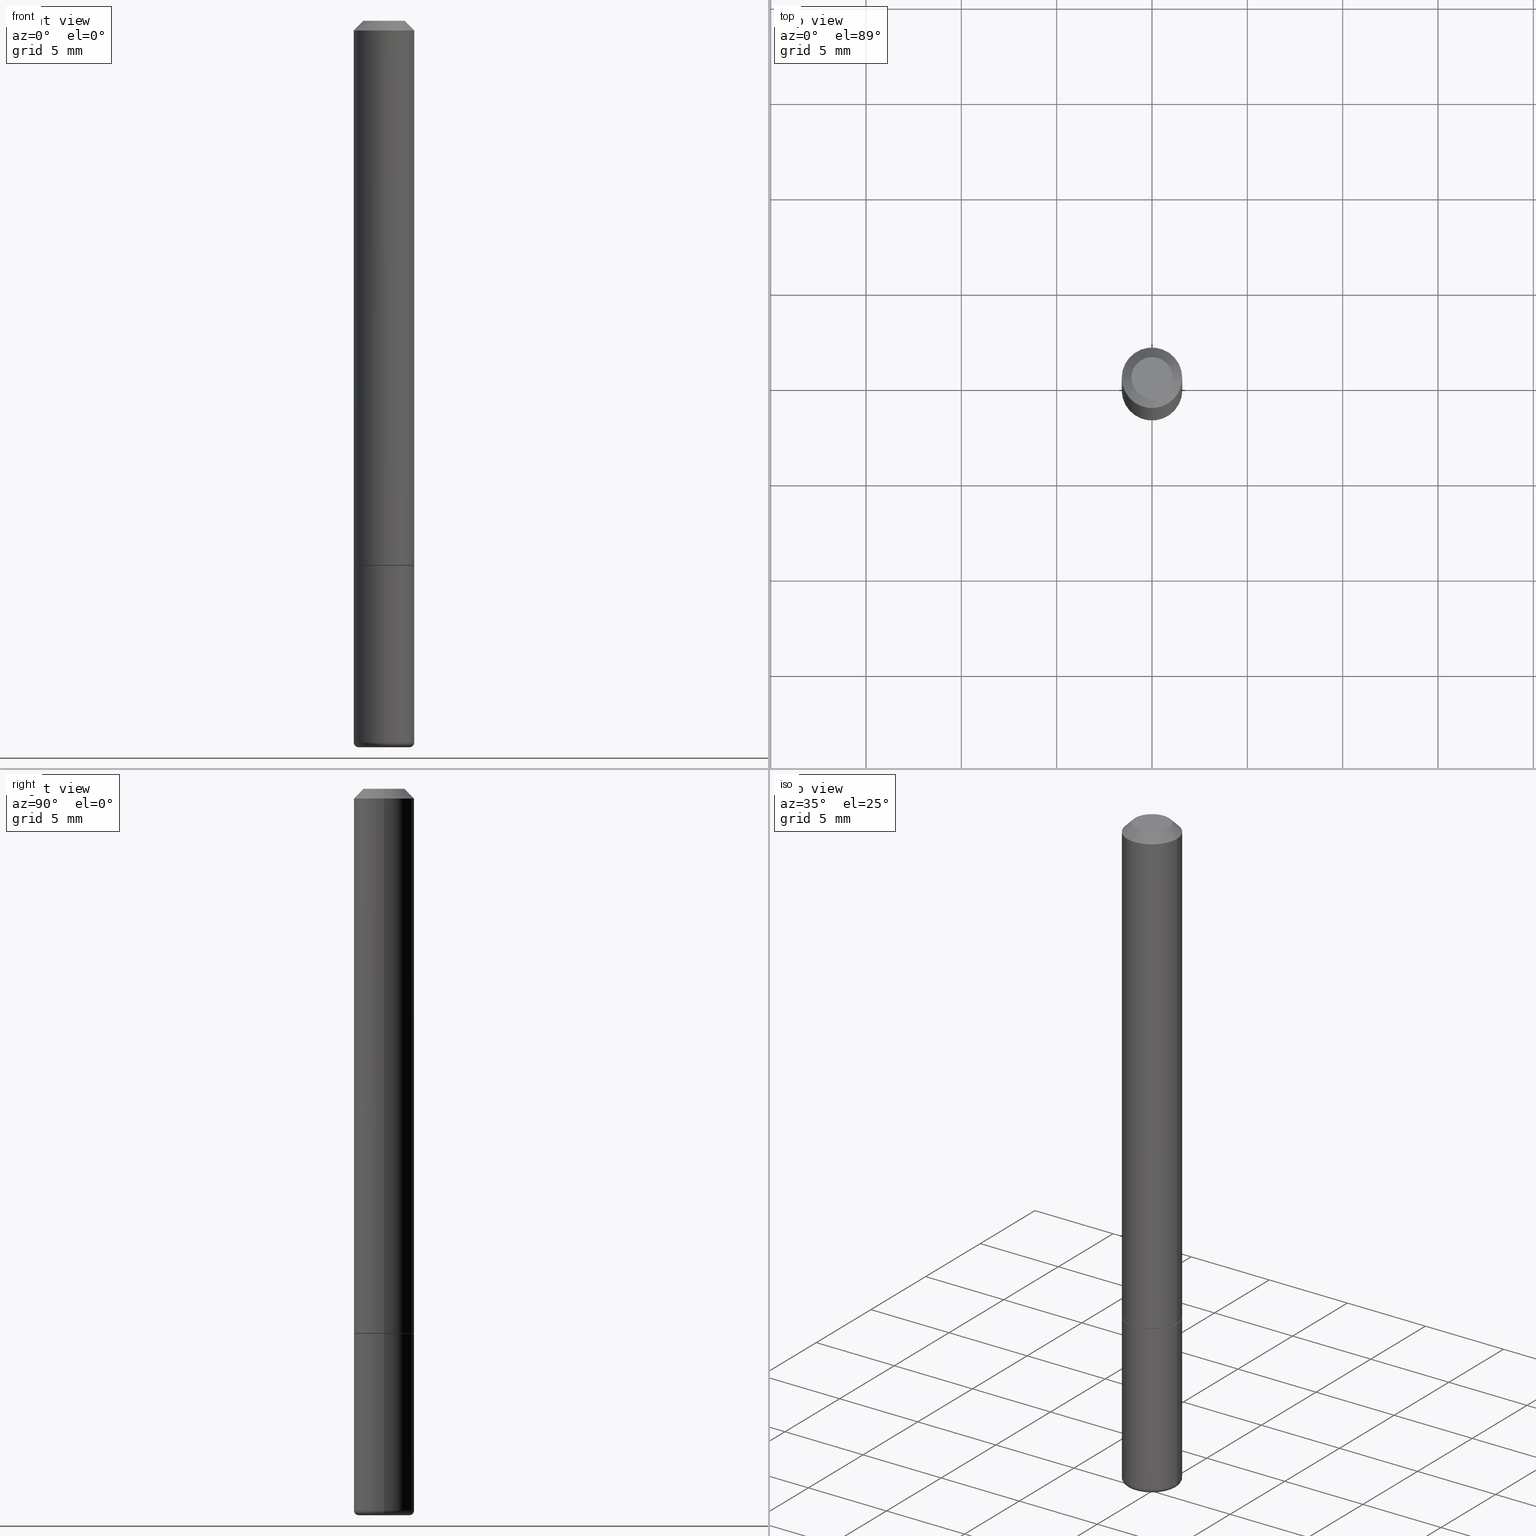
[diagram: canonical four-view strip — front | top / right | iso, engineering-drawing reading convention]
A machine part, canonical four-view strip (front | top / right | iso — engineering-drawing reading convention). The complete STEP part file that produces these views, byte-faithful:
ISO-10303-21;
HEADER;
FILE_DESCRIPTION (( 'STEP AP203' ),
    '1' );
FILE_NAME ('34771.STEP',
    '2022-11-02T20:15:37',
    ( '' ),
    ( '' ),
    'SwSTEP 2.0',
    'SolidWorks 2022',
    '' );
FILE_SCHEMA (( 'CONFIG_CONTROL_DESIGN' ));
ENDSEC;

DATA;
#1 = CIRCLE ( 'NONE', #11, 0.06249999999999988204 ) ;
#2 = VERTEX_POINT ( 'NONE', #258 ) ;
#3 = DIRECTION ( 'NONE',  ( -2.445468806185136597E-29, 3.491481338843145583E-15, 1.000000000000000000 ) ) ;
#4 = DIRECTION ( 'NONE',  ( -0.7071067811865471286, 2.468850131082252722E-15, -0.7071067811865479058 ) ) ;
#5 = CARTESIAN_POINT ( 'NONE',  ( -0.06149999999999987421, -3.490932723706079588E-15, -1.125000000000000444 ) ) ;
#6 = VECTOR ( 'NONE', #237, 39.37007874015748143 ) ;
#7 = CARTESIAN_POINT ( 'NONE',  ( -0.06249999999999981265, 4.440892098500612850E-16, -3.074334431409306655E-30 ) ) ;
#8 = PERSON_AND_ORGANIZATION_ROLE ( 'design_supplier' ) ;
#9 = CARTESIAN_POINT ( 'NONE',  ( 0.04574648464501647471, -5.550862555965727434E-15, -1.499941824517589950 ) ) ;
#10 = FACE_OUTER_BOUND ( 'NONE', #308, .T. ) ;
#11 = AXIS2_PLACEMENT_3D ( 'NONE', #27, #162, #319 ) ;
#12 = APPROVAL_PERSON_ORGANIZATION ( #138, #253, #67 ) ;
#13 = FACE_OUTER_BOUND ( 'NONE', #349, .T. ) ;
#14 = CARTESIAN_POINT ( 'NONE',  ( 3.668203209277704895E-29, -5.237222008264718177E-15, -1.500000000000000222 ) ) ;
#15 = ORIENTED_EDGE ( 'NONE', *, *, #278, .F. ) ;
#16 = DIRECTION ( 'NONE',  ( -2.445468806185136597E-29, 3.491481338843145583E-15, 1.000000000000000000 ) ) ;
#17 = CARTESIAN_POINT ( 'NONE',  ( -0.06249999999999988204, -1.553038115968216353E-15, -1.124000000000000332 ) ) ;
#18 = DIRECTION ( 'NONE',  ( 1.000000000000000000, -6.982962677686261977E-15, 0.000000000000000000 ) ) ;
#19 = AXIS2_PLACEMENT_3D ( 'NONE', #462, #243, #389 ) ;
#20 = DIRECTION ( 'NONE',  ( 1.000000000000000000, -6.982962677686268288E-15, 0.000000000000000000 ) ) ;
#21 = LOCAL_TIME ( 16, 15, 37.00000000000000000, #222 ) ;
#22 = ADVANCED_FACE ( 'NONE', ( #415 ), #227, .T. ) ;
#23 = DIRECTION ( 'NONE',  ( -0.9993908270190955401, 6.856857904024546215E-15, -0.03489949670250396679 ) ) ;
#24 = DIRECTION ( 'NONE',  ( 2.445468806185136597E-29, -3.491481338843145583E-15, -1.000000000000000000 ) ) ;
#25 = CARTESIAN_POINT ( 'NONE',  ( 3.668060942950186206E-29, -5.237018889653505716E-15, -1.499941824517589950 ) ) ;
#26 = CARTESIAN_POINT ( 'NONE',  ( 0.000000000000000000, 0.000000000000000000, 0.000000000000000000 ) ) ;
#27 = CARTESIAN_POINT ( 'NONE',  ( 2.751152406958279792E-29, -3.927916506198540013E-15, -1.125000000000000444 ) ) ;
#28 = ORIENTED_EDGE ( 'NONE', *, *, #149, .T. ) ;
#29 = ADVANCED_FACE ( 'NONE', ( #33 ), #366, .T. ) ;
#30 = LINE ( 'NONE', #446, #57 ) ;
#31 = TOROIDAL_SURFACE ( 'NONE', #311, 0.05250000000000019235, 0.009999999999999778164 ) ;
#32 = AXIS2_PLACEMENT_3D ( 'NONE', #250, #477, #361 ) ;
#33 = FACE_OUTER_BOUND ( 'NONE', #371, .T. ) ;
#34 = ORIENTED_EDGE ( 'NONE', *, *, #478, .T. ) ;
#35 =( NAMED_UNIT ( * ) PLANE_ANGLE_UNIT ( ) SI_UNIT ( $, .RADIAN. ) );
#36 = ORIENTED_EDGE ( 'NONE', *, *, #264, .F. ) ;
#37 = APPROVAL_ROLE ( '' ) ;
#38 = CARTESIAN_POINT ( 'NONE',  ( 2.751152406958279792E-29, -3.927916506198540013E-15, -1.125000000000000444 ) ) ;
#39 = VECTOR ( 'NONE', #206, 39.37007874015748854 ) ;
#40 = VERTEX_POINT ( 'NONE', #17 ) ;
#41 = CONICAL_SURFACE ( 'NONE', #338, 0.06149999999999987421, 0.7853981633974141952 ) ;
#42 = PLANE ( 'NONE',  #77 ) ;
#43 = DIRECTION ( 'NONE',  ( 2.438088387897960049E-29, -3.491481338843145188E-15, -1.000000000000000000 ) ) ;
#44 = EDGE_CURVE ( 'NONE', #268, #382, #322, .T. ) ;
#45 = DIRECTION ( 'NONE',  ( -1.000000000000000000, 6.982962677686265922E-15, 0.000000000000000000 ) ) ;
#46 = CARTESIAN_POINT ( 'NONE',  ( 4.890937612370289799E-31, -6.982962677686315028E-17, -0.02000000000000006981 ) ) ;
#47 = EDGE_LOOP ( 'NONE', ( #329, #401, #78, #489 ) ) ;
#48 = AXIS2_PLACEMENT_3D ( 'NONE', #88, #241, #386 ) ;
#49 = AXIS2_PLACEMENT_3D ( 'NONE', #140, #484, #280 ) ;
#50 = DIRECTION ( 'NONE',  ( -2.445468806185136597E-29, 3.491481338843145583E-15, 1.000000000000000000 ) ) ;
#51 = ADVANCED_BREP_SHAPE_REPRESENTATION ( '34771', ( #178, #168, #388 ), #103 ) ;
#52 = DIRECTION ( 'NONE',  ( 0.7071067811865471286, -7.319954787623254468E-15, -0.7071067811865479058 ) ) ;
#53 = DIRECTION ( 'NONE',  ( -2.445468806185136877E-29, 3.491481338843145188E-15, 1.000000000000000000 ) ) ;
#54 = ADVANCED_FACE ( 'NONE', ( #480 ), #152, .F. ) ;
#55 = ORIENTED_EDGE ( 'NONE', *, *, #220, .T. ) ;
#56 = EDGE_CURVE ( 'NONE', #425, #382, #30, .T. ) ;
#57 = VECTOR ( 'NONE', #23, 39.37007874015748143 ) ;
#58 = CARTESIAN_POINT ( 'NONE',  ( 0.06249999999999974326, -4.986107516375821473E-16, -0.02000000000000006981 ) ) ;
#59 = LINE ( 'NONE', #325, #364 ) ;
#60 = DIRECTION ( 'NONE',  ( -2.445468806185136597E-29, 3.491481338843145583E-15, 1.000000000000000000 ) ) ;
#61 = PRODUCT ( '34771', '34771', '', ( #145 ) ) ;
#62 = CARTESIAN_POINT ( 'NONE',  ( 3.668060942950186206E-29, -5.237018889653505716E-15, -1.499941824517589950 ) ) ;
#63 = EDGE_CURVE ( 'NONE', #382, #268, #124, .T. ) ;
#64 = CARTESIAN_POINT ( 'NONE',  ( -0.05241273464501648022, -4.871225838403094703E-15, -1.500000000000000222 ) ) ;
#65 = VECTOR ( 'NONE', #158, 39.37007874015748143 ) ;
#66 = APPROVAL_PERSON_ORGANIZATION ( #219, #86, #37 ) ;
#67 = APPROVAL_ROLE ( '' ) ;
#68 = CARTESIAN_POINT ( 'NONE',  ( 0.06149999999999987421, -4.357368710876244879E-15, -1.125000000000000444 ) ) ;
#69 =( LENGTH_UNIT ( ) NAMED_UNIT ( * ) SI_UNIT ( $, .METRE. ) );
#70 = ORIENTED_EDGE ( 'NONE', *, *, #210, .F. ) ;
#71 = DIRECTION ( 'NONE',  ( 0.000000000000000000, 0.000000000000000000, 1.000000000000000000 ) ) ;
#72 = AXIS2_PLACEMENT_3D ( 'NONE', #287, #174, #481 ) ;
#73 = APPLICATION_PROTOCOL_DEFINITION ( 'international standard', 'config_control_design', 1994, #391 ) ;
#74 = ORIENTED_EDGE ( 'NONE', *, *, #212, .T. ) ;
#75 = ADVANCED_FACE ( 'NONE', ( #175 ), #330, .T. ) ;
#76 = LINE ( 'NONE', #122, #353 ) ;
#77 = AXIS2_PLACEMENT_3D ( 'NONE', #160, #43, #318 ) ;
#78 = ORIENTED_EDGE ( 'NONE', *, *, #188, .T. ) ;
#79 = CC_DESIGN_APPROVAL ( #390, ( #260 ) ) ;
#80 = EDGE_LOOP ( 'NONE', ( #197, #55, #342, #115 ) ) ;
#81 = COORDINATED_UNIVERSAL_TIME_OFFSET ( 5, 0, .BEHIND. ) ;
#82 = FACE_OUTER_BOUND ( 'NONE', #105, .T. ) ;
#83 = EDGE_CURVE ( 'NONE', #492, #375, #468, .T. ) ;
#84 = DIMENSIONAL_EXPONENTS ( 1.000000000000000000, 0.000000000000000000, 0.000000000000000000, 0.000000000000000000, 0.000000000000000000, 0.000000000000000000, 0.000000000000000000 ) ;
#85 = PERSON_AND_ORGANIZATION ( #146, #404 ) ;
#86 = APPROVAL ( #452, 'UNSPECIFIED' ) ;
#87 = DIRECTION ( 'NONE',  ( -2.445468806185136597E-29, 3.491481338843145583E-15, 1.000000000000000000 ) ) ;
#88 = CARTESIAN_POINT ( 'NONE',  ( 0.000000000000000000, 0.000000000000000000, 0.000000000000000000 ) ) ;
#89 = FACE_OUTER_BOUND ( 'NONE', #114, .T. ) ;
#90 = AXIS2_PLACEMENT_3D ( 'NONE', #394, #94, #362 ) ;
#91 = CC_DESIGN_SECURITY_CLASSIFICATION ( #260, ( #236 ) ) ;
#92 = CARTESIAN_POINT ( 'NONE',  ( 3.668060942950186206E-29, -5.237018889653505716E-15, -1.499941824517589950 ) ) ;
#93 = DIRECTION ( 'NONE',  ( 1.000000000000000000, -6.982962677686258033E-15, 0.000000000000000000 ) ) ;
#94 = DIRECTION ( 'NONE',  ( -2.445468806185136597E-29, 3.491481338843145583E-15, 1.000000000000000000 ) ) ;
#95 = APPLICATION_CONTEXT ( 'configuration controlled 3d designs of mechanical parts and assemblies' ) ;
#96 = CIRCLE ( 'NONE', #439, 0.05241273464501648022 ) ;
#97 = CONICAL_SURFACE ( 'NONE', #283, 0.06249999999999974326, 0.7853981633974477239 ) ;
#98 = CARTESIAN_POINT ( 'NONE',  ( 3.643749452375443092E-29, -5.202308524325397108E-15, -1.490000380769358701 ) ) ;
#99 = DIRECTION ( 'NONE',  ( -2.445468806185136597E-29, 3.491481338843145583E-15, 1.000000000000000000 ) ) ;
#100 = EDGE_CURVE ( 'NONE', #268, #286, #249, .T. ) ;
#101 = DIRECTION ( 'NONE',  ( -2.445468806185136597E-29, 3.491481338843145583E-15, 1.000000000000000000 ) ) ;
#102 = DIRECTION ( 'NONE',  ( 1.000000000000000000, -6.982962677686265922E-15, 4.870577812114112753E-29 ) ) ;
#103 =( GEOMETRIC_REPRESENTATION_CONTEXT ( 3 ) GLOBAL_UNCERTAINTY_ASSIGNED_CONTEXT ( ( #218 ) ) GLOBAL_UNIT_ASSIGNED_CONTEXT ( ( #180, #35, #106 ) ) REPRESENTATION_CONTEXT ( 'NONE', 'WORKASPACE' ) );
#104 = ORIENTED_EDGE ( 'NONE', *, *, #205, .T. ) ;
#105 = EDGE_LOOP ( 'NONE', ( #144, #150, #104, #299 ) ) ;
#106 =( NAMED_UNIT ( * ) SI_UNIT ( $, .STERADIAN. ) SOLID_ANGLE_UNIT ( ) );
#107 = ORIENTED_EDGE ( 'NONE', *, *, #220, .F. ) ;
#108 = COORDINATED_UNIVERSAL_TIME_OFFSET ( 5, 0, .BEHIND. ) ;
#109 = DIRECTION ( 'NONE',  ( 2.445468806185136597E-29, -3.491481338843145583E-15, -1.000000000000000000 ) ) ;
#110 = ORIENTED_EDGE ( 'NONE', *, *, #83, .T. ) ;
#111 = AXIS2_PLACEMENT_3D ( 'NONE', #352, #198, #424 ) ;
#112 = CIRCLE ( 'NONE', #313, 0.06249999999999988204 ) ;
#113 = ORIENTED_EDGE ( 'NONE', *, *, #44, .F. ) ;
#114 = EDGE_LOOP ( 'NONE', ( #151, #226, #416 ) ) ;
#115 = ORIENTED_EDGE ( 'NONE', *, *, #478, .F. ) ;
#116 = DIRECTION ( 'NONE',  ( -1.000000000000000000, 6.982962677686265922E-15, -4.876176775795935793E-29 ) ) ;
#117 = ORIENTED_EDGE ( 'NONE', *, *, #368, .T. ) ;
#118 = CARTESIAN_POINT ( 'NONE',  ( 0.06249999999999988204, -4.364351673553931682E-15, -1.125000000000000444 ) ) ;
#119 = AXIS2_PLACEMENT_3D ( 'NONE', #465, #50, #271 ) ;
#120 = AXIS2_PLACEMENT_3D ( 'NONE', #186, #339, #142 ) ;
#121 = CARTESIAN_POINT ( 'NONE',  ( 4.890937612370289799E-31, -6.982962677686315028E-17, -0.02000000000000006981 ) ) ;
#122 = CARTESIAN_POINT ( 'NONE',  ( 0.06249999999999981265, -4.364351673553903382E-16, 3.047610484872450762E-30 ) ) ;
#123 = DIRECTION ( 'NONE',  ( 2.445468806185136597E-29, -3.491481338843145583E-15, -1.000000000000000000 ) ) ;
#124 = CIRCLE ( 'NONE', #141, 0.04574648464501647471 ) ;
#125 = EDGE_CURVE ( 'NONE', #491, #369, #320, .T. ) ;
#126 = DIRECTION ( 'NONE',  ( 2.445468806185136597E-29, -3.491481338843145583E-15, -1.000000000000000000 ) ) ;
#127 = CARTESIAN_POINT ( 'NONE',  ( 3.664154300552287084E-29, -5.231441239676822065E-15, -1.498344322072243440 ) ) ;
#128 = CARTESIAN_POINT ( 'NONE',  ( 3.668203209277704895E-29, -5.237222008264718177E-15, -1.500000000000000222 ) ) ;
#129 = CARTESIAN_POINT ( 'NONE',  ( 1.252621697202263706E-45, -1.788411804456536750E-31, -5.122214988120493535E-17 ) ) ;
#130 = EDGE_CURVE ( 'NONE', #184, #296, #1, .T. ) ;
#131 = EDGE_LOOP ( 'NONE', ( #215, #315, #70, #147 ) ) ;
#132 = AXIS2_PLACEMENT_3D ( 'NONE', #46, #475, #428 ) ;
#133 = CC_DESIGN_PERSON_AND_ORGANIZATION_ASSIGNMENT ( #183, #148, ( #331 ) ) ;
#134 = CARTESIAN_POINT ( 'NONE',  ( 0.000000000000000000, 0.000000000000000000, 0.000000000000000000 ) ) ;
#135 = ORIENTED_EDGE ( 'NONE', *, *, #83, .F. ) ;
#136 = DIRECTION ( 'NONE',  ( -0.9999619230641714207, 6.952228252019186602E-15, -0.008726535498369011531 ) ) ;
#137 = CARTESIAN_POINT ( 'NONE',  ( -0.06249999999999981265, -4.121023305411907128E-15, -1.490000380769358701 ) ) ;
#138 = PERSON_AND_ORGANIZATION ( #146, #404 ) ;
#139 = VERTEX_POINT ( 'NONE', #137 ) ;
#140 = CARTESIAN_POINT ( 'NONE',  ( 3.643749452375443092E-29, -5.202308524325397108E-15, -1.490000380769358701 ) ) ;
#141 = AXIS2_PLACEMENT_3D ( 'NONE', #62, #99, #18 ) ;
#142 = DIRECTION ( 'NONE',  ( 1.000000000000000000, -6.982962677686268288E-15, 0.000000000000000000 ) ) ;
#143 = ORIENTED_EDGE ( 'NONE', *, *, #149, .F. ) ;
#144 = ORIENTED_EDGE ( 'NONE', *, *, #368, .F. ) ;
#145 = MECHANICAL_CONTEXT ( 'NONE', #95, 'mechanical' ) ;
#146 = PERSON ( 'UNSPECIFIED', 'UNSPECIFIED', 'UNSPECIFIED', ('UNSPECIFIED'), ('UNSPECIFIED'), ('UNSPECIFIED') ) ;
#147 = ORIENTED_EDGE ( 'NONE', *, *, #348, .F. ) ;
#148 = PERSON_AND_ORGANIZATION_ROLE ( 'creator' ) ;
#149 = EDGE_CURVE ( 'NONE', #369, #375, #76, .T. ) ;
#150 = ORIENTED_EDGE ( 'NONE', *, *, #360, .T. ) ;
#151 = ORIENTED_EDGE ( 'NONE', *, *, #56, .F. ) ;
#152 = CONICAL_SURFACE ( 'NONE', #337, 0.05241273464501648022, 1.562069680534929894 ) ;
#153 = CONICAL_SURFACE ( 'NONE', #32, 0.06149999999999987421, 0.7853981633974141952 ) ;
#154 = ORIENTED_EDGE ( 'NONE', *, *, #278, .T. ) ;
#155 = DATE_AND_TIME ( #239, #293 ) ;
#156 = DIRECTION ( 'NONE',  ( 1.000000000000000000, -6.982962677686268288E-15, 0.000000000000000000 ) ) ;
#157 = EDGE_CURVE ( 'NONE', #425, #268, #203, .T. ) ;
#158 = DIRECTION ( 'NONE',  ( -2.445468806185136877E-29, 3.491481338843145188E-15, 1.000000000000000000 ) ) ;
#159 = ORIENTED_EDGE ( 'NONE', *, *, #327, .F. ) ;
#160 = CARTESIAN_POINT ( 'NONE',  ( 2.967759138016645800E-16, 0.04249999999999975325, -1.739990318414352692E-16 ) ) ;
#161 = ADVANCED_FACE ( 'NONE', ( #355 ), #42, .F. ) ;
#162 = DIRECTION ( 'NONE',  ( -2.445468806185136597E-29, 3.491481338843145583E-15, 1.000000000000000000 ) ) ;
#163 = AXIS2_PLACEMENT_3D ( 'NONE', #274, #123, #45 ) ;
#164 = SECURITY_CLASSIFICATION_LEVEL ( 'unclassified' ) ;
#165 = CARTESIAN_POINT ( 'NONE',  ( -0.06249999999999984734, 4.440892098500615315E-16, -3.074334431409308406E-30 ) ) ;
#166 = PERSON_AND_ORGANIZATION ( #146, #404 ) ;
#167 = CARTESIAN_POINT ( 'NONE',  ( 0.05241273464501648022, -5.603218178126342439E-15, -1.500000000000000222 ) ) ;
#168 = MANIFOLD_SOLID_BREP ( 'Body-Move/Copy2[2]', #437 ) ;
#169 = CARTESIAN_POINT ( 'NONE',  ( 0.06249999999999988204, -4.360860192215087886E-15, -1.124000000000000332 ) ) ;
#170 = AXIS2_PLACEMENT_3D ( 'NONE', #427, #196, #116 ) ;
#171 = DIRECTION ( 'NONE',  ( -2.445468806185136597E-29, 3.491481338843145583E-15, 1.000000000000000000 ) ) ;
#172 = ADVANCED_FACE ( 'NONE', ( #316 ), #281, .F. ) ;
#173 = CARTESIAN_POINT ( 'NONE',  ( 2.751152406958279792E-29, -3.927916506198540013E-15, -1.125000000000000444 ) ) ;
#174 = DIRECTION ( 'NONE',  ( -2.445468806185136597E-29, 3.491481338843145583E-15, 1.000000000000000000 ) ) ;
#175 = FACE_OUTER_BOUND ( 'NONE', #190, .T. ) ;
#176 = AXIS2_PLACEMENT_3D ( 'NONE', #129, #359, #102 ) ;
#177 = CC_DESIGN_APPROVAL ( #86, ( #331 ) ) ;
#178 = MANIFOLD_SOLID_BREP ( 'Body-Move/Copy2[1]', #445 ) ;
#179 = FACE_OUTER_BOUND ( 'NONE', #453, .T. ) ;
#180 =( CONVERSION_BASED_UNIT ( 'INCH', #376 ) LENGTH_UNIT ( ) NAMED_UNIT ( #84 ) );
#181 = PRODUCT_DEFINITION_SHAPE ( 'NONE', 'NONE',  #331 ) ;
#182 = EDGE_LOOP ( 'NONE', ( #410, #461, #304, #159 ) ) ;
#183 = PERSON_AND_ORGANIZATION ( #146, #404 ) ;
#184 = VERTEX_POINT ( 'NONE', #240 ) ;
#185 = AXIS2_PLACEMENT_3D ( 'NONE', #92, #474, #246 ) ;
#186 = CARTESIAN_POINT ( 'NONE',  ( 2.748706938152094189E-29, -3.924425024859697006E-15, -1.124000000000000332 ) ) ;
#187 = VERTEX_POINT ( 'NONE', #314 ) ;
#188 = EDGE_CURVE ( 'NONE', #286, #2, #343, .T. ) ;
#189 = DIRECTION ( 'NONE',  ( -1.000000000000000000, 7.105427357600990815E-15, 0.000000000000000000 ) ) ;
#190 = EDGE_LOOP ( 'NONE', ( #378, #34, #28, #135 ) ) ;
#191 = ORIENTED_EDGE ( 'NONE', *, *, #341, .F. ) ;
#192 = CALENDAR_DATE ( 2022, 2, 11 ) ;
#193 = EDGE_LOOP ( 'NONE', ( #458, #467 ) ) ;
#194 = PERSON_AND_ORGANIZATION_ROLE ( 'classification_officer' ) ;
#195 = LOCAL_TIME ( 16, 15, 37.00000000000000000, #108 ) ;
#196 = DIRECTION ( 'NONE',  ( 2.438088387897960049E-29, -3.491481338843145188E-15, -1.000000000000000000 ) ) ;
#197 = ORIENTED_EDGE ( 'NONE', *, *, #233, .F. ) ;
#198 = DIRECTION ( 'NONE',  ( -2.445468806185136597E-29, 3.491481338843145583E-15, 1.000000000000000000 ) ) ;
#199 = PERSON_AND_ORGANIZATION_ROLE ( 'creator' ) ;
#200 = DIRECTION ( 'NONE',  ( 1.000000000000000000, -6.982962677686297476E-15, 0.000000000000000000 ) ) ;
#201 = ORIENTED_EDGE ( 'NONE', *, *, #212, .F. ) ;
#202 = APPROVAL_DATE_TIME ( #155, #390 ) ;
#203 = LINE ( 'NONE', #238, #6 ) ;
#204 = VECTOR ( 'NONE', #254, 39.37007874015748854 ) ;
#205 = EDGE_CURVE ( 'NONE', #375, #492, #457, .T. ) ;
#206 = DIRECTION ( 'NONE',  ( -0.7071067811865232589, 7.493145998870265808E-15, 0.7071067811865715536 ) ) ;
#207 = FACE_OUTER_BOUND ( 'NONE', #300, .T. ) ;
#208 = FACE_OUTER_BOUND ( 'NONE', #336, .T. ) ;
#209 = CIRCLE ( 'NONE', #251, 0.06149999999999987421 ) ;
#210 = EDGE_CURVE ( 'NONE', #291, #286, #292, .T. ) ;
#211 = DIRECTION ( 'NONE',  ( 1.000000000000000000, -6.982962677686269077E-15, 0.000000000000000000 ) ) ;
#212 = EDGE_CURVE ( 'NONE', #491, #187, #421, .T. ) ;
#213 = DIRECTION ( 'NONE',  ( -2.445468806185136597E-29, 3.491481338843145583E-15, 1.000000000000000000 ) ) ;
#214 = DIRECTION ( 'NONE',  ( -2.445468806185136597E-29, 3.491481338843145583E-15, 1.000000000000000000 ) ) ;
#215 = ORIENTED_EDGE ( 'NONE', *, *, #63, .T. ) ;
#216 = CIRCLE ( 'NONE', #176, 0.04249999999999975325 ) ;
#217 = AXIS2_PLACEMENT_3D ( 'NONE', #414, #24, #409 ) ;
#218 = UNCERTAINTY_MEASURE_WITH_UNIT (LENGTH_MEASURE( 1.000000000000000082E-05 ), #180, 'distance_accuracy_value', 'NONE');
#219 = PERSON_AND_ORGANIZATION ( #146, #404 ) ;
#220 = EDGE_CURVE ( 'NONE', #187, #491, #209, .T. ) ;
#221 = ADVANCED_FACE ( 'NONE', ( #82 ), #244, .T. ) ;
#222 = COORDINATED_UNIVERSAL_TIME_OFFSET ( 5, 0, .BEHIND. ) ;
#223 = DIRECTION ( 'NONE',  ( 0.7071067811865232589, -2.468850131082003836E-15, 0.7071067811865715536 ) ) ;
#224 = ORIENTED_EDGE ( 'NONE', *, *, #370, .T. ) ;
#225 = CC_DESIGN_PERSON_AND_ORGANIZATION_ASSIGNMENT ( #464, #194, ( #260 ) ) ;
#226 = ORIENTED_EDGE ( 'NONE', *, *, #157, .T. ) ;
#227 = TOROIDAL_SURFACE ( 'NONE', #49, 0.05250000000000019235, 0.009999999999999778164 ) ;
#228 = CIRCLE ( 'NONE', #72, 0.06249999999999988204 ) ;
#229 = ORIENTED_EDGE ( 'NONE', *, *, #392, .F. ) ;
#230 = CC_DESIGN_DATE_AND_TIME_ASSIGNMENT ( #456, #487, ( #331 ) ) ;
#231 = CARTESIAN_POINT ( 'NONE',  ( 2.748706938152094189E-29, -3.924425024859697006E-15, -1.124000000000000332 ) ) ;
#232 = ORIENTED_EDGE ( 'NONE', *, *, #463, .T. ) ;
#233 = EDGE_CURVE ( 'NONE', #187, #40, #354, .T. ) ;
#234 = CALENDAR_DATE ( 2022, 2, 11 ) ;
#235 = CC_DESIGN_PERSON_AND_ORGANIZATION_ASSIGNMENT ( #309, #8, ( #236 ) ) ;
#236 = PRODUCT_DEFINITION_FORMATION_WITH_SPECIFIED_SOURCE ( 'ANY', '', #61, .NOT_KNOWN. ) ;
#237 = DIRECTION ( 'NONE',  ( 0.9993908270190955401, -6.978169709227550954E-15, -0.03489949670250396679 ) ) ;
#238 = CARTESIAN_POINT ( 'NONE',  ( 0.04574648464501647471, -5.550862555965727434E-15, -1.499941824517589950 ) ) ;
#239 = CALENDAR_DATE ( 2022, 2, 11 ) ;
#240 = CARTESIAN_POINT ( 'NONE',  ( -0.06249999999999986816, -4.121023305411907128E-15, -1.125000000000000444 ) ) ;
#241 = DIRECTION ( 'NONE',  ( -2.445468806185136597E-29, 3.491481338843145583E-15, 1.000000000000000000 ) ) ;
#242 = EDGE_CURVE ( 'NONE', #434, #492, #347, .T. ) ;
#243 = DIRECTION ( 'NONE',  ( 2.445468806185136597E-29, -3.491481338843145583E-15, -1.000000000000000000 ) ) ;
#244 = CONICAL_SURFACE ( 'NONE', #163, 0.06249999999999974326, 0.7853981633974477239 ) ;
#245 = CIRCLE ( 'NONE', #120, 0.06249999999999988204 ) ;
#246 = DIRECTION ( 'NONE',  ( -1.000000000000000000, 6.982962677686261977E-15, 0.000000000000000000 ) ) ;
#247 = DIRECTION ( 'NONE',  ( 1.000000000000000000, -6.982962677686266711E-15, 4.883557194083112901E-29 ) ) ;
#248 = EDGE_CURVE ( 'NONE', #40, #492, #307, .T. ) ;
#249 = LINE ( 'NONE', #440, #204 ) ;
#250 = CARTESIAN_POINT ( 'NONE',  ( 2.751152406958279792E-29, -3.927916506198540013E-15, -1.125000000000000444 ) ) ;
#251 = AXIS2_PLACEMENT_3D ( 'NONE', #38, #87, #385 ) ;
#252 = CONICAL_SURFACE ( 'NONE', #217, 0.05241273464501648022, 1.562069680534929894 ) ;
#253 = APPROVAL ( #405, 'UNSPECIFIED' ) ;
#254 = DIRECTION ( 'NONE',  ( 0.9999619230641714207, -6.890705306874825328E-15, -0.008726535498369011531 ) ) ;
#255 = DIRECTION ( 'NONE',  ( -2.445468806185136597E-29, 3.491481338843145583E-15, 1.000000000000000000 ) ) ;
#256 = DIRECTION ( 'NONE',  ( 7.105427357601001859E-15, 1.000000000000000000, -3.491481338843145583E-15 ) ) ;
#257 = CARTESIAN_POINT ( 'NONE',  ( 0.06149999999999987421, -4.357368710876244879E-15, -1.125000000000000444 ) ) ;
#258 = CARTESIAN_POINT ( 'NONE',  ( 0.06249999999999981265, -5.638743691680787200E-15, -1.490000380769358701 ) ) ;
#259 = VECTOR ( 'NONE', #223, 39.37007874015748854 ) ;
#260 = SECURITY_CLASSIFICATION ( '', '', #164 ) ;
#261 = PERSON_AND_ORGANIZATION ( #146, #404 ) ;
#262 = ORIENTED_EDGE ( 'NONE', *, *, #486, .F. ) ;
#263 = FACE_OUTER_BOUND ( 'NONE', #182, .T. ) ;
#264 = EDGE_CURVE ( 'NONE', #139, #184, #433, .T. ) ;
#265 = ORIENTED_EDGE ( 'NONE', *, *, #56, .T. ) ;
#266 = DATE_AND_TIME ( #192, #195 ) ;
#267 = VECTOR ( 'NONE', #52, 39.37007874015748143 ) ;
#268 = VERTEX_POINT ( 'NONE', #9 ) ;
#269 = ORIENTED_EDGE ( 'NONE', *, *, #248, .T. ) ;
#270 = ADVANCED_FACE ( 'NONE', ( #89 ), #379, .F. ) ;
#271 = DIRECTION ( 'NONE',  ( 1.000000000000000000, -6.982962677686265922E-15, 4.870577812114112753E-29 ) ) ;
#272 = EDGE_LOOP ( 'NONE', ( #154, #117 ) ) ;
#273 = AXIS2_PLACEMENT_3D ( 'NONE', #442, #214, #400 ) ;
#274 = CARTESIAN_POINT ( 'NONE',  ( 4.890937612370289799E-31, -6.982962677686315028E-17, -0.02000000000000006981 ) ) ;
#275 = ORIENTED_EDGE ( 'NONE', *, *, #125, .F. ) ;
#276 = DATE_AND_TIME ( #234, #303 ) ;
#277 = DIRECTION ( 'NONE',  ( -2.445468806185136597E-29, 3.491481338843145583E-15, 1.000000000000000000 ) ) ;
#278 = EDGE_CURVE ( 'NONE', #434, #426, #403, .T. ) ;
#279 = CARTESIAN_POINT ( 'NONE',  ( -0.06249999999999974326, 3.666055405785266949E-16, -0.02000000000000006981 ) ) ;
#280 = DIRECTION ( 'NONE',  ( 1.000000000000000000, -6.982962677686266711E-15, 4.883557194083112901E-29 ) ) ;
#281 = PLANE ( 'NONE',  #170 ) ;
#282 = AXIS2_PLACEMENT_3D ( 'NONE', #380, #3, #156 ) ;
#283 = AXIS2_PLACEMENT_3D ( 'NONE', #395, #126, #284 ) ;
#284 = DIRECTION ( 'NONE',  ( -1.000000000000000000, 6.982962677686265922E-15, 0.000000000000000000 ) ) ;
#285 = CARTESIAN_POINT ( 'NONE',  ( -0.05250000000000019235, -4.829273588051342996E-15, -1.490000380769358701 ) ) ;
#286 = VERTEX_POINT ( 'NONE', #167 ) ;
#287 = CARTESIAN_POINT ( 'NONE',  ( 2.751152406958279792E-29, -3.927916506198540013E-15, -1.125000000000000444 ) ) ;
#288 = CC_DESIGN_PERSON_AND_ORGANIZATION_ASSIGNMENT ( #85, #199, ( #236 ) ) ;
#289 = DIRECTION ( 'NONE',  ( 1.000000000000000000, -6.982962677686266711E-15, 4.876176775795935793E-29 ) ) ;
#290 = CARTESIAN_POINT ( 'NONE',  ( 3.643749452375443092E-29, -5.202308524325397108E-15, -1.490000380769358701 ) ) ;
#291 = VERTEX_POINT ( 'NONE', #419 ) ;
#292 = CIRCLE ( 'NONE', #111, 0.05241273464501648022 ) ;
#293 = LOCAL_TIME ( 16, 15, 37.00000000000000000, #81 ) ;
#294 = DIRECTION ( 'NONE',  ( -2.445468806185136597E-29, 3.491481338843145583E-15, 1.000000000000000000 ) ) ;
#295 = DIRECTION ( 'NONE',  ( -1.000000000000000000, 6.982962677686258033E-15, 0.000000000000000000 ) ) ;
#296 = VERTEX_POINT ( 'NONE', #118 ) ;
#297 = DIRECTION ( 'NONE',  ( 1.000000000000000000, 0.000000000000000000, 0.000000000000000000 ) ) ;
#298 = ADVANCED_FACE ( 'NONE', ( #310 ), #387, .F. ) ;
#299 = ORIENTED_EDGE ( 'NONE', *, *, #242, .F. ) ;
#300 = EDGE_LOOP ( 'NONE', ( #201, #107 ) ) ;
#301 = ORIENTED_EDGE ( 'NONE', *, *, #157, .F. ) ;
#302 = CIRCLE ( 'NONE', #90, 0.06249999999999981265 ) ;
#303 = LOCAL_TIME ( 16, 15, 37.00000000000000000, #472 ) ;
#304 = ORIENTED_EDGE ( 'NONE', *, *, #348, .T. ) ;
#305 = ADVANCED_FACE ( 'NONE', ( #179 ), #332, .T. ) ;
#306 = APPROVAL_ROLE ( '' ) ;
#307 = LINE ( 'NONE', #7, #65 ) ;
#308 = EDGE_LOOP ( 'NONE', ( #334, #232, #450, #420 ) ) ;
#309 = PERSON_AND_ORGANIZATION ( #146, #404 ) ;
#310 = FACE_OUTER_BOUND ( 'NONE', #381, .T. ) ;
#311 = AXIS2_PLACEMENT_3D ( 'NONE', #290, #213, #247 ) ;
#312 = ADVANCED_FACE ( 'NONE', ( #10 ), #31, .T. ) ;
#313 = AXIS2_PLACEMENT_3D ( 'NONE', #231, #294, #490 ) ;
#314 = CARTESIAN_POINT ( 'NONE',  ( -0.06149999999999987421, -3.485634269357857581E-15, -1.125000000000000444 ) ) ;
#315 = ORIENTED_EDGE ( 'NONE', *, *, #100, .T. ) ;
#316 = FACE_OUTER_BOUND ( 'NONE', #193, .T. ) ;
#317 = SHAPE_DEFINITION_REPRESENTATION ( #181, #51 ) ;
#318 = DIRECTION ( 'NONE',  ( -1.000000000000000000, 6.982962677686265922E-15, -4.876176775795935793E-29 ) ) ;
#319 = DIRECTION ( 'NONE',  ( 1.000000000000000000, -6.982962677686268288E-15, 0.000000000000000000 ) ) ;
#320 = LINE ( 'NONE', #68, #259 ) ;
#321 = CARTESIAN_POINT ( 'NONE',  ( 2.751152406958279792E-29, -3.927916506198540013E-15, -1.125000000000000444 ) ) ;
#322 = CIRCLE ( 'NONE', #396, 0.04574648464501647471 ) ;
#323 = AXIS2_PLACEMENT_3D ( 'NONE', #134, #171, #289 ) ;
#324 = DIRECTION ( 'NONE',  ( -2.445468806185136597E-29, 3.491481338843145583E-15, 1.000000000000000000 ) ) ;
#325 = CARTESIAN_POINT ( 'NONE',  ( 0.06249999999999984734, -4.364351673553905847E-16, 3.047610484872452514E-30 ) ) ;
#326 = FACE_OUTER_BOUND ( 'NONE', #374, .T. ) ;
#327 = EDGE_CURVE ( 'NONE', #286, #291, #96, .T. ) ;
#328 = VECTOR ( 'NONE', #4, 39.37007874015748143 ) ;
#329 = ORIENTED_EDGE ( 'NONE', *, *, #463, .F. ) ;
#330 = CYLINDRICAL_SURFACE ( 'NONE', #48, 0.06249999999999981265 ) ;
#331 = PRODUCT_DEFINITION ( 'UNKNOWN', '', #236, #340 ) ;
#332 = CYLINDRICAL_SURFACE ( 'NONE', #431, 0.06249999999999981265 ) ;
#333 = CALENDAR_DATE ( 2022, 2, 11 ) ;
#334 = ORIENTED_EDGE ( 'NONE', *, *, #327, .T. ) ;
#335 = DATE_AND_TIME ( #367, #21 ) ;
#336 = EDGE_LOOP ( 'NONE', ( #74, #408, #262, #275 ) ) ;
#337 = AXIS2_PLACEMENT_3D ( 'NONE', #128, #109, #295 ) ;
#338 = AXIS2_PLACEMENT_3D ( 'NONE', #321, #101, #20 ) ;
#339 = DIRECTION ( 'NONE',  ( -2.445468806185136597E-29, 3.491481338843145583E-15, 1.000000000000000000 ) ) ;
#340 = DESIGN_CONTEXT ( 'detailed design', #391, 'design' ) ;
#341 = EDGE_CURVE ( 'NONE', #296, #184, #228, .T. ) ;
#342 = ORIENTED_EDGE ( 'NONE', *, *, #125, .T. ) ;
#343 = CIRCLE ( 'NONE', #447, 0.009999999999999772959 ) ;
#344 = CIRCLE ( 'NONE', #422, 0.06249999999999981265 ) ;
#345 = CARTESIAN_POINT ( 'NONE',  ( 0.05250000000000019235, -5.568914064903927057E-15, -1.490000380769358701 ) ) ;
#346 = ORIENTED_EDGE ( 'NONE', *, *, #398, .T. ) ;
#347 = LINE ( 'NONE', #279, #328 ) ;
#348 = EDGE_CURVE ( 'NONE', #382, #291, #402, .T. ) ;
#349 = EDGE_LOOP ( 'NONE', ( #36, #224, #357, #407 ) ) ;
#350 = DATE_TIME_ROLE ( 'classification_date' ) ;
#351 = PRODUCT_RELATED_PRODUCT_CATEGORY ( 'detail', '', ( #61 ) ) ;
#352 = CARTESIAN_POINT ( 'NONE',  ( 3.668203209277704895E-29, -5.237222008264718177E-15, -1.500000000000000222 ) ) ;
#353 = VECTOR ( 'NONE', #383, 39.37007874015748143 ) ;
#354 = LINE ( 'NONE', #5, #39 ) ;
#355 = FACE_OUTER_BOUND ( 'NONE', #272, .T. ) ;
#356 = DIRECTION ( 'NONE',  ( 1.000000000000000000, -6.982962677686265922E-15, 4.876176775795935793E-29 ) ) ;
#357 = ORIENTED_EDGE ( 'NONE', *, *, #392, .T. ) ;
#358 = CARTESIAN_POINT ( 'NONE',  ( 0.04249999999999975325, -3.950909582714353640E-16, -5.122214988120251946E-17 ) ) ;
#359 = DIRECTION ( 'NONE',  ( -2.445468806185136597E-29, 3.491481338843145583E-15, 1.000000000000000000 ) ) ;
#360 = EDGE_CURVE ( 'NONE', #426, #375, #443, .T. ) ;
#361 = DIRECTION ( 'NONE',  ( 1.000000000000000000, -6.982962677686268288E-15, 0.000000000000000000 ) ) ;
#362 = DIRECTION ( 'NONE',  ( 1.000000000000000000, -6.982962677686269077E-15, 0.000000000000000000 ) ) ;
#363 = DIRECTION ( 'NONE',  ( 1.000000000000000000, -6.982962677686261977E-15, 0.000000000000000000 ) ) ;
#364 = VECTOR ( 'NONE', #53, 39.37007874015748143 ) ;
#365 = COORDINATED_UNIVERSAL_TIME_OFFSET ( 5, 0, .BEHIND. ) ;
#366 = CYLINDRICAL_SURFACE ( 'NONE', #273, 0.06249999999999984734 ) ;
#367 = CALENDAR_DATE ( 2022, 2, 11 ) ;
#368 = EDGE_CURVE ( 'NONE', #426, #434, #216, .T. ) ;
#369 = VERTEX_POINT ( 'NONE', #169 ) ;
#370 = EDGE_CURVE ( 'NONE', #139, #2, #302, .T. ) ;
#371 = EDGE_LOOP ( 'NONE', ( #346, #430, #191, #229 ) ) ;
#372 = AXIS2_PLACEMENT_3D ( 'NONE', #121, #277, #423 ) ;
#373 = APPROVAL_DATE_TIME ( #266, #86 ) ;
#374 = EDGE_LOOP ( 'NONE', ( #377, #15, #455, #110 ) ) ;
#375 = VERTEX_POINT ( 'NONE', #393 ) ;
#376 = LENGTH_MEASURE_WITH_UNIT ( LENGTH_MEASURE( 0.02539999999999999897 ), #69 );
#377 = ORIENTED_EDGE ( 'NONE', *, *, #360, .F. ) ;
#378 = ORIENTED_EDGE ( 'NONE', *, *, #248, .F. ) ;
#379 = CONICAL_SURFACE ( 'NONE', #19, 0.04574648464501647471, 1.535889741755007032 ) ;
#380 = CARTESIAN_POINT ( 'NONE',  ( 2.751152406958279792E-29, -3.927916506198540013E-15, -1.125000000000000444 ) ) ;
#381 = EDGE_LOOP ( 'NONE', ( #301, #265, #113 ) ) ;
#382 = VERTEX_POINT ( 'NONE', #435 ) ;
#383 = DIRECTION ( 'NONE',  ( -2.445468806185136877E-29, 3.491481338843145188E-15, 1.000000000000000000 ) ) ;
#384 = ADVANCED_FACE ( 'NONE', ( #207 ), #441, .F. ) ;
#385 = DIRECTION ( 'NONE',  ( 1.000000000000000000, -6.982962677686268288E-15, 0.000000000000000000 ) ) ;
#386 = DIRECTION ( 'NONE',  ( 1.000000000000000000, -6.982962677686266711E-15, 4.876176775795935793E-29 ) ) ;
#387 = CONICAL_SURFACE ( 'NONE', #185, 0.04574648464501647471, 1.535889741755007032 ) ;
#388 = AXIS2_PLACEMENT_3D ( 'NONE', #26, #71, #297 ) ;
#389 = DIRECTION ( 'NONE',  ( -1.000000000000000000, 6.982962677686261977E-15, 0.000000000000000000 ) ) ;
#390 = APPROVAL ( #417, 'UNSPECIFIED' ) ;
#391 = APPLICATION_CONTEXT ( 'configuration controlled 3d designs of mechanical parts and assemblies' ) ;
#392 = EDGE_CURVE ( 'NONE', #2, #296, #59, .T. ) ;
#393 = CARTESIAN_POINT ( 'NONE',  ( 0.06249999999999974326, -4.986107516375821473E-16, -0.02000000000000006981 ) ) ;
#394 = CARTESIAN_POINT ( 'NONE',  ( 3.643749452375443092E-29, -5.202308524325397108E-15, -1.490000380769358701 ) ) ;
#395 = CARTESIAN_POINT ( 'NONE',  ( 4.890937612370289799E-31, -6.982962677686315028E-17, -0.02000000000000006981 ) ) ;
#396 = AXIS2_PLACEMENT_3D ( 'NONE', #25, #60, #363 ) ;
#397 = APPROVAL_PERSON_ORGANIZATION ( #166, #390, #306 ) ;
#398 = EDGE_CURVE ( 'NONE', #2, #139, #344, .T. ) ;
#399 = FACE_OUTER_BOUND ( 'NONE', #80, .T. ) ;
#400 = DIRECTION ( 'NONE',  ( 1.000000000000000000, -6.982962677686266711E-15, 4.876176775795935793E-29 ) ) ;
#401 = ORIENTED_EDGE ( 'NONE', *, *, #210, .T. ) ;
#402 = LINE ( 'NONE', #64, #412 ) ;
#403 = CIRCLE ( 'NONE', #119, 0.04249999999999975325 ) ;
#404 = ORGANIZATION ( 'UNSPECIFIED', 'UNSPECIFIED', '' ) ;
#405 = APPROVAL_STATUS ( 'not_yet_approved' ) ;
#406 = ADVANCED_FACE ( 'NONE', ( #399 ), #41, .T. ) ;
#407 = ORIENTED_EDGE ( 'NONE', *, *, #130, .F. ) ;
#408 = ORIENTED_EDGE ( 'NONE', *, *, #233, .T. ) ;
#409 = DIRECTION ( 'NONE',  ( -1.000000000000000000, 6.982962677686258033E-15, 0.000000000000000000 ) ) ;
#410 = ORIENTED_EDGE ( 'NONE', *, *, #100, .F. ) ;
#411 = APPLICATION_PROTOCOL_DEFINITION ( 'international standard', 'config_control_design', 1994, #95 ) ;
#412 = VECTOR ( 'NONE', #136, 39.37007874015748854 ) ;
#413 = ADVANCED_FACE ( 'NONE', ( #208 ), #153, .T. ) ;
#414 = CARTESIAN_POINT ( 'NONE',  ( 3.668203209277704895E-29, -5.237222008264718177E-15, -1.500000000000000222 ) ) ;
#415 = FACE_OUTER_BOUND ( 'NONE', #47, .T. ) ;
#416 = ORIENTED_EDGE ( 'NONE', *, *, #63, .F. ) ;
#417 = APPROVAL_STATUS ( 'not_yet_approved' ) ;
#418 = ADVANCED_FACE ( 'NONE', ( #326 ), #97, .T. ) ;
#419 = CARTESIAN_POINT ( 'NONE',  ( -0.05241273464501648022, -4.811513222053336477E-15, -1.500000000000000222 ) ) ;
#420 = ORIENTED_EDGE ( 'NONE', *, *, #188, .F. ) ;
#421 = CIRCLE ( 'NONE', #282, 0.06149999999999987421 ) ;
#422 = AXIS2_PLACEMENT_3D ( 'NONE', #98, #255, #211 ) ;
#423 = DIRECTION ( 'NONE',  ( 1.000000000000000000, -6.982962677686265922E-15, 0.000000000000000000 ) ) ;
#424 = DIRECTION ( 'NONE',  ( 1.000000000000000000, -6.982962677686258033E-15, 0.000000000000000000 ) ) ;
#425 = VERTEX_POINT ( 'NONE', #127 ) ;
#426 = VERTEX_POINT ( 'NONE', #358 ) ;
#427 = CARTESIAN_POINT ( 'NONE',  ( 4.364351673554182935E-16, 0.06249999999999595462, -1.125000000000000666 ) ) ;
#428 = DIRECTION ( 'NONE',  ( 1.000000000000000000, -6.982962677686265922E-15, 0.000000000000000000 ) ) ;
#429 = ADVANCED_FACE ( 'NONE', ( #13 ), #482, .T. ) ;
#430 = ORIENTED_EDGE ( 'NONE', *, *, #264, .T. ) ;
#431 = AXIS2_PLACEMENT_3D ( 'NONE', #485, #16, #436 ) ;
#432 = CIRCLE ( 'NONE', #459, 0.009999999999999772959 ) ;
#433 = LINE ( 'NONE', #165, #483 ) ;
#434 = VERTEX_POINT ( 'NONE', #479 ) ;
#435 = CARTESIAN_POINT ( 'NONE',  ( -0.04574648464501647471, -4.917572894742007996E-15, -1.499941824517589950 ) ) ;
#436 = DIRECTION ( 'NONE',  ( 1.000000000000000000, -6.982962677686266711E-15, 4.876176775795935793E-29 ) ) ;
#437 = CLOSED_SHELL ( 'NONE', ( #413, #305, #221, #418, #75, #406, #384, #161 ) ) ;
#438 = DIRECTION ( 'NONE',  ( -2.438088387897960049E-29, 3.491481338843145188E-15, 1.000000000000000000 ) ) ;
#439 = AXIS2_PLACEMENT_3D ( 'NONE', #14, #324, #93 ) ;
#440 = CARTESIAN_POINT ( 'NONE',  ( 0.05241273464501648022, -5.596799469354584620E-15, -1.500000000000000222 ) ) ;
#441 = PLANE ( 'NONE',  #476 ) ;
#442 = CARTESIAN_POINT ( 'NONE',  ( 0.000000000000000000, 0.000000000000000000, 0.000000000000000000 ) ) ;
#443 = LINE ( 'NONE', #58, #267 ) ;
#444 = CARTESIAN_POINT ( 'NONE',  ( -0.06249999999999974326, 3.666055405785266949E-16, -0.02000000000000006981 ) ) ;
#445 = CLOSED_SHELL ( 'NONE', ( #54, #312, #29, #270, #298, #172, #429, #22, #466 ) ) ;
#446 = CARTESIAN_POINT ( 'NONE',  ( -0.04574648464501647471, -4.917572894742007996E-15, -1.499941824517589950 ) ) ;
#447 = AXIS2_PLACEMENT_3D ( 'NONE', #345, #470, #200 ) ;
#448 = LOCAL_TIME ( 16, 15, 37.00000000000000000, #365 ) ;
#449 = CC_DESIGN_PERSON_AND_ORGANIZATION_ASSIGNMENT ( #261, #460, ( #61 ) ) ;
#450 = ORIENTED_EDGE ( 'NONE', *, *, #398, .F. ) ;
#451 = ORIENTED_EDGE ( 'NONE', *, *, #486, .T. ) ;
#452 = APPROVAL_STATUS ( 'not_yet_approved' ) ;
#453 = EDGE_LOOP ( 'NONE', ( #451, #269, #454, #143 ) ) ;
#454 = ORIENTED_EDGE ( 'NONE', *, *, #205, .F. ) ;
#455 = ORIENTED_EDGE ( 'NONE', *, *, #242, .T. ) ;
#456 = DATE_AND_TIME ( #333, #448 ) ;
#457 = CIRCLE ( 'NONE', #372, 0.06249999999999974326 ) ;
#458 = ORIENTED_EDGE ( 'NONE', *, *, #341, .T. ) ;
#459 = AXIS2_PLACEMENT_3D ( 'NONE', #285, #256, #189 ) ;
#460 = PERSON_AND_ORGANIZATION_ROLE ( 'design_owner' ) ;
#461 = ORIENTED_EDGE ( 'NONE', *, *, #44, .T. ) ;
#462 = CARTESIAN_POINT ( 'NONE',  ( 3.668060942950186206E-29, -5.237018889653505716E-15, -1.499941824517589950 ) ) ;
#463 = EDGE_CURVE ( 'NONE', #291, #139, #432, .T. ) ;
#464 = PERSON_AND_ORGANIZATION ( #146, #404 ) ;
#465 = CARTESIAN_POINT ( 'NONE',  ( 1.252621697202263706E-45, -1.788411804456536750E-31, -5.122214988120493535E-17 ) ) ;
#466 = ADVANCED_FACE ( 'NONE', ( #263 ), #252, .F. ) ;
#467 = ORIENTED_EDGE ( 'NONE', *, *, #130, .T. ) ;
#468 = CIRCLE ( 'NONE', #132, 0.06249999999999974326 ) ;
#469 = CC_DESIGN_APPROVAL ( #253, ( #236 ) ) ;
#470 = DIRECTION ( 'NONE',  ( -6.982962677686266711E-15, -1.000000000000000000, 3.491481338843145583E-15 ) ) ;
#471 = CC_DESIGN_DATE_AND_TIME_ASSIGNMENT ( #276, #350, ( #260 ) ) ;
#472 = COORDINATED_UNIVERSAL_TIME_OFFSET ( 5, 0, .BEHIND. ) ;
#473 = DIRECTION ( 'NONE',  ( -2.445468806185136877E-29, 3.491481338843145188E-15, 1.000000000000000000 ) ) ;
#474 = DIRECTION ( 'NONE',  ( 2.445468806185136597E-29, -3.491481338843145583E-15, -1.000000000000000000 ) ) ;
#475 = DIRECTION ( 'NONE',  ( -2.445468806185136597E-29, 3.491481338843145583E-15, 1.000000000000000000 ) ) ;
#476 = AXIS2_PLACEMENT_3D ( 'NONE', #173, #438, #356 ) ;
#477 = DIRECTION ( 'NONE',  ( -2.445468806185136597E-29, 3.491481338843145583E-15, 1.000000000000000000 ) ) ;
#478 = EDGE_CURVE ( 'NONE', #40, #369, #245, .T. ) ;
#479 = CARTESIAN_POINT ( 'NONE',  ( -0.04249999999999975325, 3.316907271900955881E-16, -5.122214988120713553E-17 ) ) ;
#480 = FACE_OUTER_BOUND ( 'NONE', #131, .T. ) ;
#481 = DIRECTION ( 'NONE',  ( 1.000000000000000000, -6.982962677686268288E-15, 0.000000000000000000 ) ) ;
#482 = CYLINDRICAL_SURFACE ( 'NONE', #323, 0.06249999999999984734 ) ;
#483 = VECTOR ( 'NONE', #473, 39.37007874015748143 ) ;
#484 = DIRECTION ( 'NONE',  ( -2.445468806185136597E-29, 3.491481338843145583E-15, 1.000000000000000000 ) ) ;
#485 = CARTESIAN_POINT ( 'NONE',  ( 0.000000000000000000, 0.000000000000000000, 0.000000000000000000 ) ) ;
#486 = EDGE_CURVE ( 'NONE', #369, #40, #112, .T. ) ;
#487 = DATE_TIME_ROLE ( 'creation_date' ) ;
#488 = APPROVAL_DATE_TIME ( #335, #253 ) ;
#489 = ORIENTED_EDGE ( 'NONE', *, *, #370, .F. ) ;
#490 = DIRECTION ( 'NONE',  ( 1.000000000000000000, -6.982962677686268288E-15, 0.000000000000000000 ) ) ;
#491 = VERTEX_POINT ( 'NONE', #257 ) ;
#492 = VERTEX_POINT ( 'NONE', #444 ) ;
ENDSEC;
END-ISO-10303-21;
